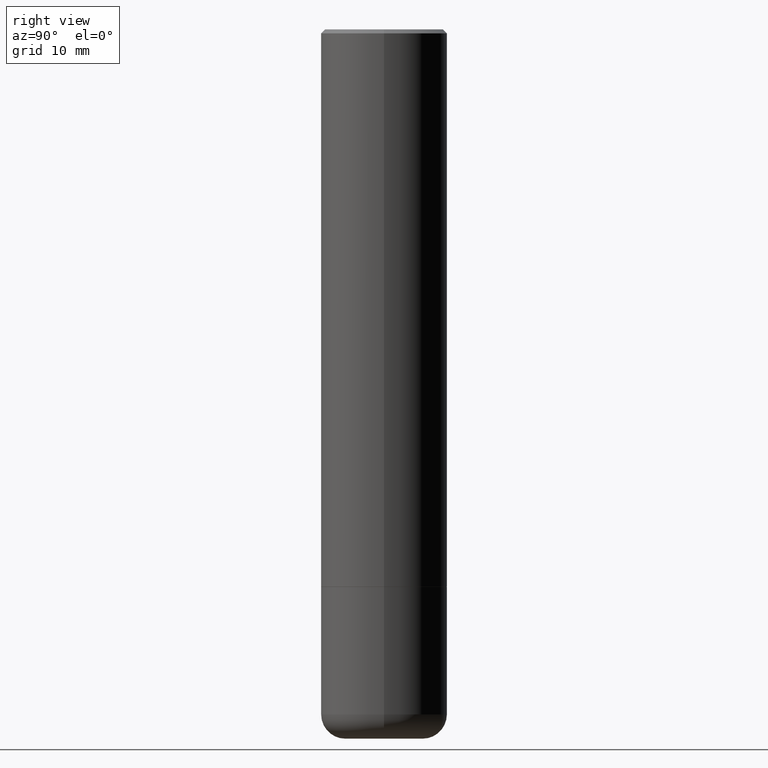
[diagram: clean part render]
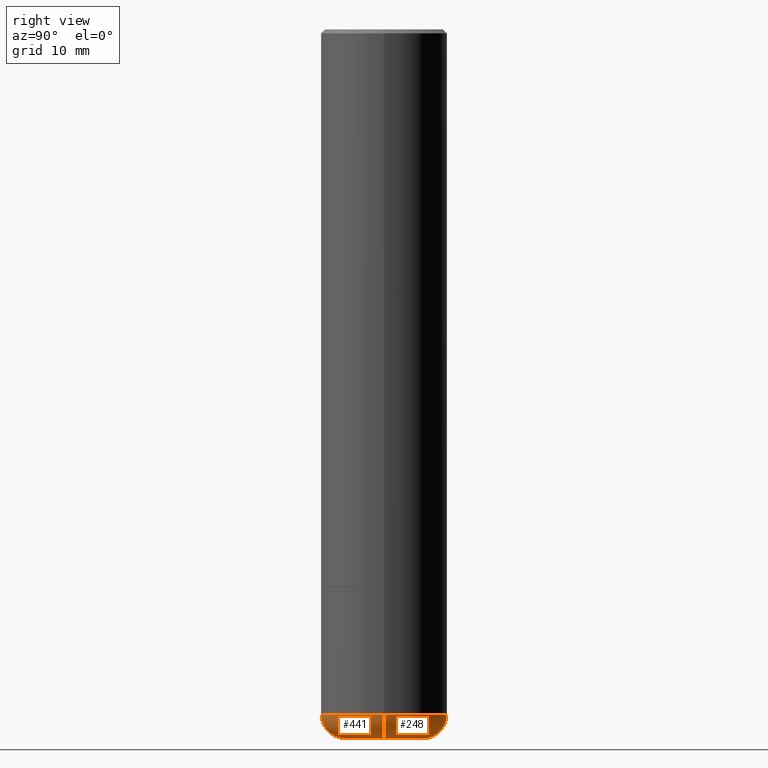
[diagram: same view with one multi-face feature highlighted, each face labeled with its STEP entity id]
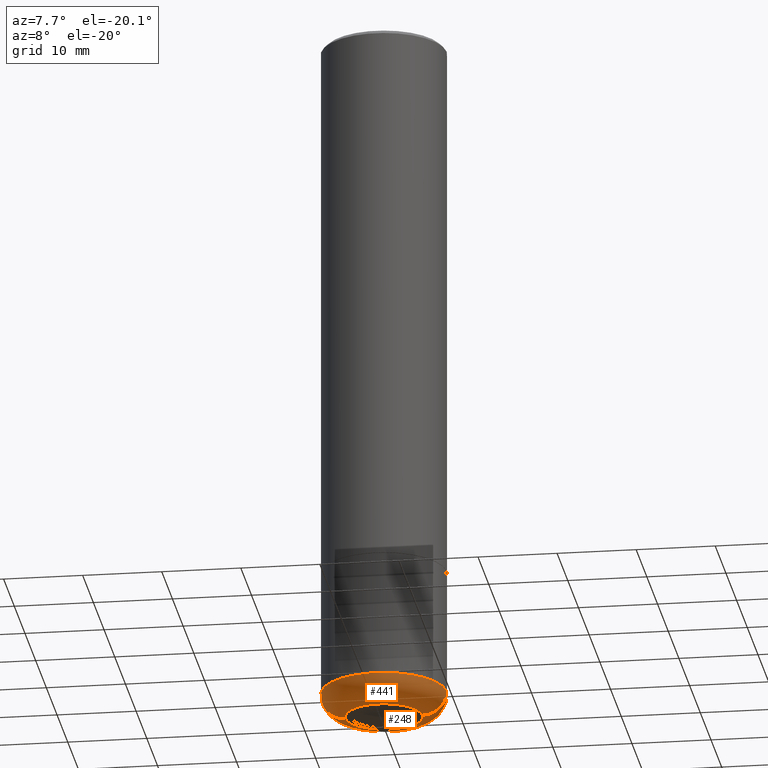
[diagram: same view with one multi-face feature highlighted, each face labeled with its STEP entity id]
A machine part, right view. The highlighted faces form ONE feature: a constant-radius fillet chain: 2 tangent blend faces with common blend radius 3.048 mm. The faces share edges in the B-rep.
A second angle (auxiliary view) of the same feature is appended — it is thin or edge-on in the first view.
Their STEP definitions:
[1] entity #248 (Torus):
#26 = ORIENTED_EDGE ( 'NONE', *, *, #446, .T. ) ;
#30 = CIRCLE ( 'NONE', #300, 0.1914528157401960418 ) ;
#32 = EDGE_CURVE ( 'NONE', #106, #114, #408, .T. ) ;
#37 = ORIENTED_EDGE ( 'NONE', *, *, #196, .F. ) ;
#41 = FACE_OUTER_BOUND ( 'NONE', #371, .T. ) ;
#47 = CARTESIAN_POINT ( 'NONE',  ( 8.265695738820817389E-29, -1.180122287867913601E-14, -3.380004569232299083 ) ) ;
#69 = CARTESIAN_POINT ( 'NONE',  ( 0.1914528157401960418, -1.355709255280274461E-14, -3.500000000000000000 ) ) ;
#83 = CARTESIAN_POINT ( 'NONE',  ( -0.3125000000000000000, -8.480952230998579063E-15, -3.380004569232299083 ) ) ;
#85 = DIRECTION ( 'NONE',  ( 1.000000000000000000, -6.982962677686269077E-15, 4.883557194083113462E-29 ) ) ;
#104 = AXIS2_PLACEMENT_3D ( 'NONE', #187, #158, #85 ) ;
#106 = VERTEX_POINT ( 'NONE', #69 ) ;
#114 = VERTEX_POINT ( 'NONE', #405 ) ;
#130 = DIRECTION ( 'NONE',  ( -1.000000000000000000, 7.105427357601005014E-15, 0.000000000000000000 ) ) ;
#136 = CARTESIAN_POINT ( 'NONE',  ( -0.1925000000000002265, -1.043342811234094233E-14, -3.380004569232299083 ) ) ;
#158 = DIRECTION ( 'NONE',  ( -2.445468806185136597E-29, 3.491481338843145583E-15, 1.000000000000000000 ) ) ;
#172 = CARTESIAN_POINT ( 'NONE',  ( -0.1914528157401960418, -1.022030372036484833E-14, -3.500000000000000000 ) ) ;
#179 = AXIS2_PLACEMENT_3D ( 'NONE', #47, #258, #459 ) ;
#187 = CARTESIAN_POINT ( 'NONE',  ( 8.265695738820817389E-29, -1.180122287867913601E-14, -3.380004569232299083 ) ) ;
#196 = EDGE_CURVE ( 'NONE', #114, #221, #423, .T. ) ;
#206 = DIRECTION ( 'NONE',  ( -2.445468806185136597E-29, 3.491481338843145583E-15, 1.000000000000000000 ) ) ;
#208 = DIRECTION ( 'NONE',  ( 1.000000000000000000, -6.982962677686265133E-15, 0.000000000000000000 ) ) ;
#221 = VERTEX_POINT ( 'NONE', #83 ) ;
#229 = CIRCLE ( 'NONE', #433, 0.1200000000000000511 ) ;
#231 = DIRECTION ( 'NONE',  ( 1.000000000000000000, -6.982962677686269077E-15, 0.000000000000000000 ) ) ;
#233 = CARTESIAN_POINT ( 'NONE',  ( 0.1925000000000002265, -1.314544319413374424E-14, -3.380004569232299083 ) ) ;
#245 = TOROIDAL_SURFACE ( 'NONE', #104, 0.1925000000000002265, 0.1200000000000000511 ) ;
#248 = ADVANCED_FACE ( 'NONE', ( #41 ), #245, .T. ) ;
#258 = DIRECTION ( 'NONE',  ( -2.445468806185136597E-29, 3.491481338843145583E-15, 1.000000000000000000 ) ) ;
#300 = AXIS2_PLACEMENT_3D ( 'NONE', #384, #206, #231 ) ;
#318 = DIRECTION ( 'NONE',  ( 7.105427357601001859E-15, 1.000000000000000000, -3.491481338843145583E-15 ) ) ;
#338 = ORIENTED_EDGE ( 'NONE', *, *, #32, .F. ) ;
#342 = VERTEX_POINT ( 'NONE', #172 ) ;
#371 = EDGE_LOOP ( 'NONE', ( #26, #473, #37, #338 ) ) ;
#384 = CARTESIAN_POINT ( 'NONE',  ( 8.559140821647976968E-29, -1.222018468595100934E-14, -3.500000000000000000 ) ) ;
#388 = EDGE_CURVE ( 'NONE', #342, #221, #229, .T. ) ;
#405 = CARTESIAN_POINT ( 'NONE',  ( 0.3125000000000000000, -1.398339871545609435E-14, -3.380004569232299083 ) ) ;
#408 = CIRCLE ( 'NONE', #432, 0.1200000000000000511 ) ;
#423 = CIRCLE ( 'NONE', #179, 0.3125000000000000000 ) ;
#429 = DIRECTION ( 'NONE',  ( -6.982962677686266711E-15, -1.000000000000000000, 3.491481338843145583E-15 ) ) ;
#432 = AXIS2_PLACEMENT_3D ( 'NONE', #233, #429, #208 ) ;
#433 = AXIS2_PLACEMENT_3D ( 'NONE', #136, #318, #130 ) ;
#446 = EDGE_CURVE ( 'NONE', #106, #342, #30, .T. ) ;
#459 = DIRECTION ( 'NONE',  ( 1.000000000000000000, -6.982962677686269077E-15, 0.000000000000000000 ) ) ;
#473 = ORIENTED_EDGE ( 'NONE', *, *, #388, .T. ) ;
[2] entity #441 (Torus):
#29 = AXIS2_PLACEMENT_3D ( 'NONE', #162, #193, #189 ) ;
#32 = EDGE_CURVE ( 'NONE', #106, #114, #408, .T. ) ;
#45 = ORIENTED_EDGE ( 'NONE', *, *, #388, .F. ) ;
#64 = TOROIDAL_SURFACE ( 'NONE', #277, 0.1925000000000002265, 0.1200000000000000511 ) ;
#66 = CARTESIAN_POINT ( 'NONE',  ( 8.265695738820817389E-29, -1.180122287867913601E-14, -3.380004569232299083 ) ) ;
#69 = CARTESIAN_POINT ( 'NONE',  ( 0.1914528157401960418, -1.355709255280274461E-14, -3.500000000000000000 ) ) ;
#83 = CARTESIAN_POINT ( 'NONE',  ( -0.3125000000000000000, -8.480952230998579063E-15, -3.380004569232299083 ) ) ;
#99 = EDGE_CURVE ( 'NONE', #221, #114, #315, .T. ) ;
#106 = VERTEX_POINT ( 'NONE', #69 ) ;
#112 = AXIS2_PLACEMENT_3D ( 'NONE', #66, #333, #364 ) ;
#114 = VERTEX_POINT ( 'NONE', #405 ) ;
#130 = DIRECTION ( 'NONE',  ( -1.000000000000000000, 7.105427357601005014E-15, 0.000000000000000000 ) ) ;
#136 = CARTESIAN_POINT ( 'NONE',  ( -0.1925000000000002265, -1.043342811234094233E-14, -3.380004569232299083 ) ) ;
#162 = CARTESIAN_POINT ( 'NONE',  ( 8.559140821647976968E-29, -1.222018468595100934E-14, -3.500000000000000000 ) ) ;
#172 = CARTESIAN_POINT ( 'NONE',  ( -0.1914528157401960418, -1.022030372036484833E-14, -3.500000000000000000 ) ) ;
#173 = DIRECTION ( 'NONE',  ( -2.445468806185136597E-29, 3.491481338843145583E-15, 1.000000000000000000 ) ) ;
#183 = ORIENTED_EDGE ( 'NONE', *, *, #99, .F. ) ;
#189 = DIRECTION ( 'NONE',  ( 1.000000000000000000, -6.982962677686269077E-15, 0.000000000000000000 ) ) ;
#193 = DIRECTION ( 'NONE',  ( -2.445468806185136597E-29, 3.491481338843145583E-15, 1.000000000000000000 ) ) ;
#197 = CIRCLE ( 'NONE', #29, 0.1914528157401960418 ) ;
#205 = EDGE_CURVE ( 'NONE', #342, #106, #197, .T. ) ;
#208 = DIRECTION ( 'NONE',  ( 1.000000000000000000, -6.982962677686265133E-15, 0.000000000000000000 ) ) ;
#221 = VERTEX_POINT ( 'NONE', #83 ) ;
#229 = CIRCLE ( 'NONE', #433, 0.1200000000000000511 ) ;
#233 = CARTESIAN_POINT ( 'NONE',  ( 0.1925000000000002265, -1.314544319413374424E-14, -3.380004569232299083 ) ) ;
#277 = AXIS2_PLACEMENT_3D ( 'NONE', #359, #173, #279 ) ;
#279 = DIRECTION ( 'NONE',  ( 1.000000000000000000, -6.982962677686269077E-15, 4.883557194083113462E-29 ) ) ;
#297 = EDGE_LOOP ( 'NONE', ( #45, #329, #483, #183 ) ) ;
#315 = CIRCLE ( 'NONE', #112, 0.3125000000000000000 ) ;
#318 = DIRECTION ( 'NONE',  ( 7.105427357601001859E-15, 1.000000000000000000, -3.491481338843145583E-15 ) ) ;
#329 = ORIENTED_EDGE ( 'NONE', *, *, #205, .T. ) ;
#333 = DIRECTION ( 'NONE',  ( -2.445468806185136597E-29, 3.491481338843145583E-15, 1.000000000000000000 ) ) ;
#342 = VERTEX_POINT ( 'NONE', #172 ) ;
#353 = FACE_OUTER_BOUND ( 'NONE', #297, .T. ) ;
#359 = CARTESIAN_POINT ( 'NONE',  ( 8.265695738820817389E-29, -1.180122287867913601E-14, -3.380004569232299083 ) ) ;
#364 = DIRECTION ( 'NONE',  ( 1.000000000000000000, -6.982962677686269077E-15, 0.000000000000000000 ) ) ;
#388 = EDGE_CURVE ( 'NONE', #342, #221, #229, .T. ) ;
#405 = CARTESIAN_POINT ( 'NONE',  ( 0.3125000000000000000, -1.398339871545609435E-14, -3.380004569232299083 ) ) ;
#408 = CIRCLE ( 'NONE', #432, 0.1200000000000000511 ) ;
#429 = DIRECTION ( 'NONE',  ( -6.982962677686266711E-15, -1.000000000000000000, 3.491481338843145583E-15 ) ) ;
#432 = AXIS2_PLACEMENT_3D ( 'NONE', #233, #429, #208 ) ;
#433 = AXIS2_PLACEMENT_3D ( 'NONE', #136, #318, #130 ) ;
#441 = ADVANCED_FACE ( 'NONE', ( #353 ), #64, .T. ) ;
#483 = ORIENTED_EDGE ( 'NONE', *, *, #32, .T. ) ;